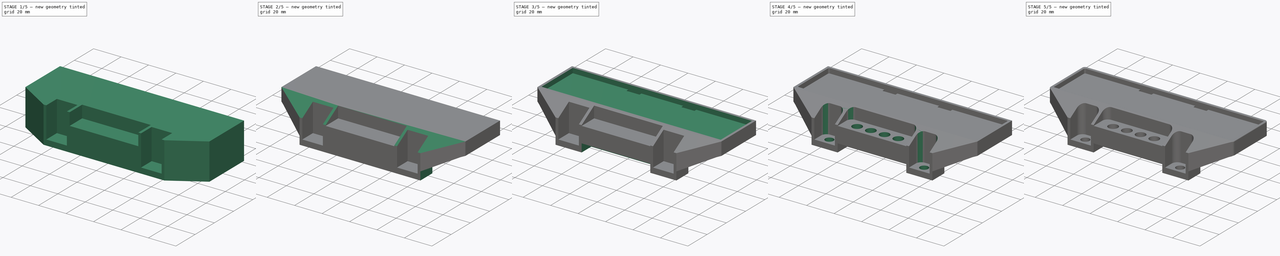
[diagram: build sequence overview — one tinted view per stage of 5, left to right]
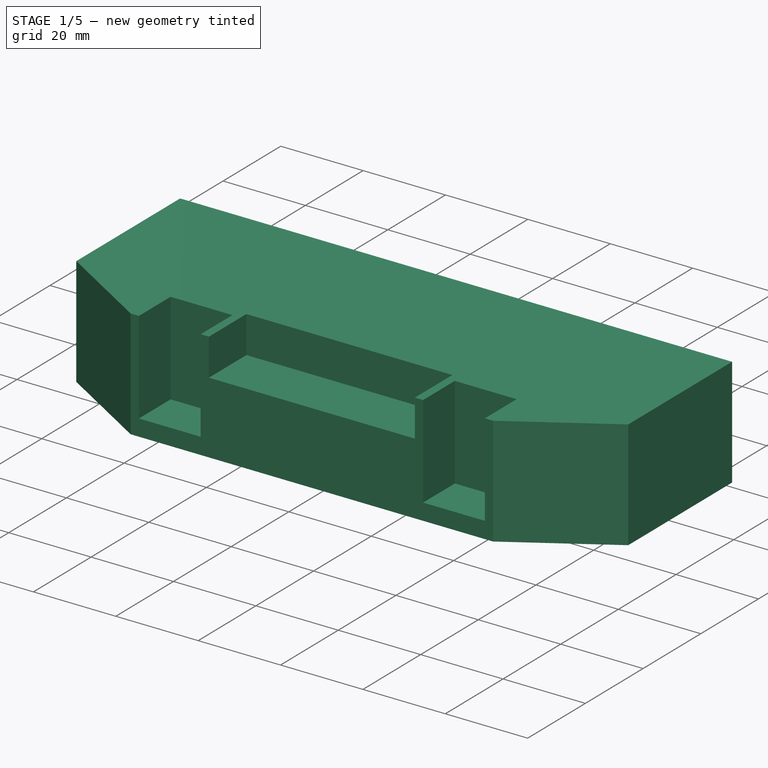
[diagram: stage 1 of 5 — iso view after this stage's code; geometry added in this stage tinted green]
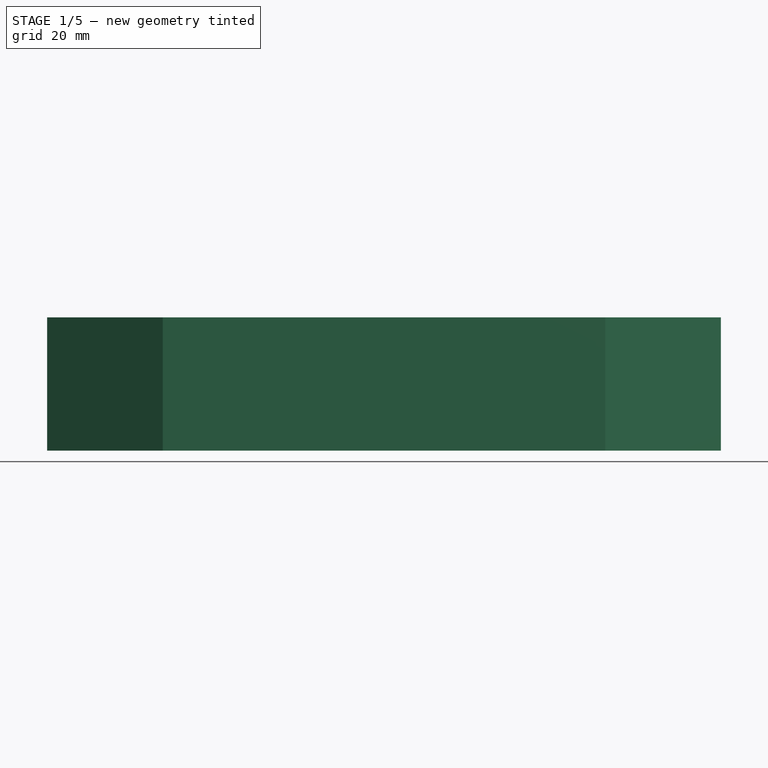
[diagram: stage 1 of 5 — front view after this stage's code; geometry added in this stage tinted green]
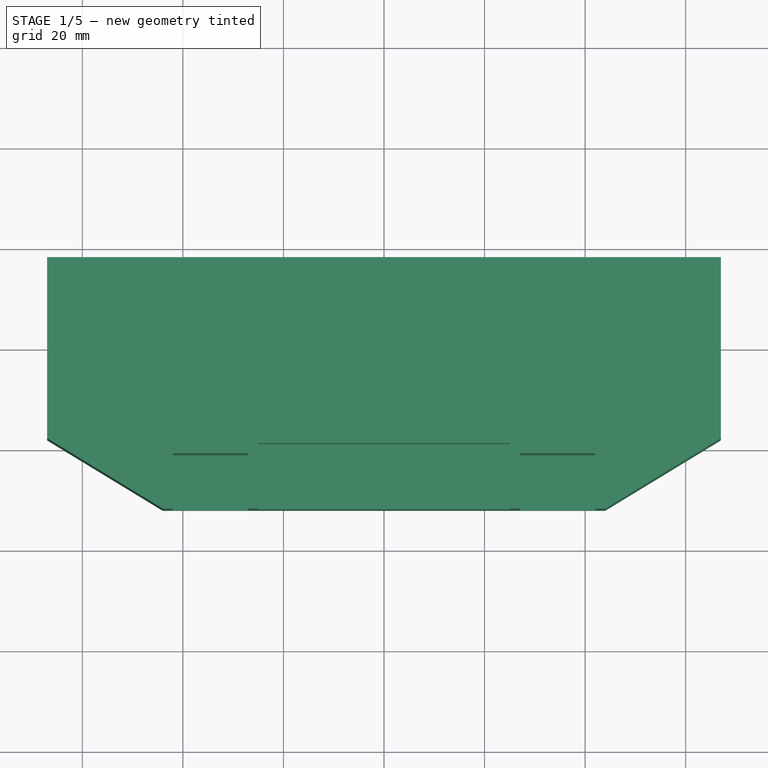
[diagram: stage 1 of 5 — top view after this stage's code; geometry added in this stage tinted green]
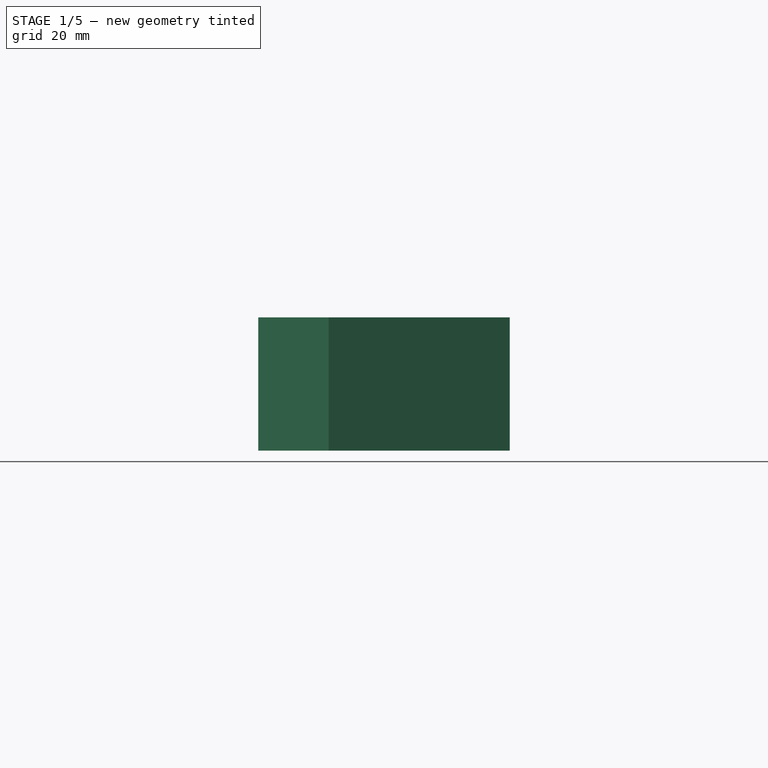
[diagram: stage 1 of 5 — right view after this stage's code; geometry added in this stage tinted green]
FCSTD DOCUMENT  (FreeCAD 0.22R36526 (Git))
Label: FuseBlock
License: All rights reserved
LicenseURL: http://en.wikipedia.org/wiki/All_rights_reserved
objects: Sketcher::SketchObject×10, PartDesign::Pocket×9, PartDesign::Fillet×5, PartDesign::Pad×1, PartDesign::Body×1
note: 41 computed .brp shape members not serialized (recipe doc carries the construction recipe); baked Part::Feature solids carry a one-line shape summary decoded from their .brp

FEATURE [Sketcher::SketchObject] Sketch  label="FullOutline"
  AttachmentSupport = -> [XY_Plane]
  FullyConstrained = true
  MapMode = 5
  sketch-geometry (6):
    g0: LineSegment StartX=-67 StartY=18 StartZ=0 EndX=-67 EndY=-18 EndZ=0
    g1: LineSegment StartX=67 StartY=-18 StartZ=0 EndX=67 EndY=18 EndZ=0
    g2: LineSegment StartX=67 StartY=18 StartZ=0 EndX=-67 EndY=18 EndZ=0
    g3: LineSegment StartX=-44 StartY=-32 StartZ=0 EndX=44 EndY=-32 EndZ=0
    g4: LineSegment StartX=-44 StartY=-32 StartZ=0 EndX=-67 EndY=-18 EndZ=0
    g5: LineSegment StartX=44 StartY=-32 StartZ=0 EndX=67 EndY=-18 EndZ=0
  constraints (16):
    c: Coincident(g1,g2)
    c: Coincident(g2,g0)
    c: Vertical(g0)
    c: Vertical(g1)
    c: Horizontal(g2)
    c: Symmetric(g0,g1,g-1)
    c: DistanceX(g2,g2) = 134
    c: DistanceY(g0,g0) = 36
    c: DistanceX(g3,g3) = 88
    c: Symmetric(g3,g3,g-2)
    c: DistanceY(g3,g0) = 50
    c: Coincident(g4,g3)
    c: Coincident(g4,g0)
    c: Coincident(g5,g3)
    c: Coincident(g5,g1)
    c: Equal(g0,g1)
FEATURE [PartDesign::Pad] Pad  label="EntireOutline"
  Direction = (0,0,1)
  Length = 26.5
  Length2 = 10
  Profile = -> Sketch
  ReferenceAxis = -> Sketch [N_Axis]
  Suppressed = false
  Type = 0
FEATURE [Sketcher::SketchObject] Sketch001  label="MountPocket"
  AttachmentSupport = -> [Pad]
  ExternalGeometry = -> [Pad]
  FullyConstrained = true
  MapMode = 5
  Placement = pos=(0,0,26.5) rot=(0,0,1;0rad)
  sketch-geometry (8):
    g0: LineSegment StartX=-42 StartY=-32 StartZ=0 EndX=-27 EndY=-32 EndZ=0
    g1: LineSegment StartX=-27 StartY=-32 StartZ=0 EndX=-27 EndY=-21 EndZ=0
    g2: LineSegment StartX=-27 StartY=-21 StartZ=0 EndX=-42 EndY=-21 EndZ=0
    g3: LineSegment StartX=-42 StartY=-21 StartZ=0 EndX=-42 EndY=-32 EndZ=0
    g4: LineSegment StartX=42 StartY=-32 StartZ=0 EndX=42 EndY=-21 EndZ=0
    g5: LineSegment StartX=42 StartY=-21 StartZ=0 EndX=27 EndY=-21 EndZ=0
    g6: LineSegment StartX=27 StartY=-21 StartZ=0 EndX=27 EndY=-32 EndZ=0
    g7: LineSegment StartX=27 StartY=-32 StartZ=0 EndX=42 EndY=-32 EndZ=0
  constraints (24):
    c: Coincident(g0,g1)
    c: Coincident(g1,g2)
    c: Coincident(g2,g3)
    c: Coincident(g3,g0)
    c: Horizontal(g0)
    c: Horizontal(g2)
    c: Vertical(g1)
    c: Vertical(g3)
    c: PointOnObject(g0,g-3)
    c: DistanceX(g-3,g0) = 2
    c: DistanceX(g0,g0) = 15
    c: DistanceY(g0,g2) = 11
    c: Coincident(g4,g5)
    c: Coincident(g5,g6)
    c: Coincident(g6,g7)
    c: Coincident(g7,g4)
    c: Vertical(g4)
    c: Vertical(g6)
    c: Horizontal(g5)
    c: Horizontal(g7)
    c: PointOnObject(g4,g-3)
    c: DistanceX(g4,g-3) = 2
    c: DistanceX(g6,g4) = 15
    c: DistanceY(g4,g4) = 11
FEATURE [PartDesign::Pocket] Pocket  label="MountPointPocket"
  BaseFeature = -> Pad
  Direction = (0,0,-1)
  Length = 22.5
  Length2 = 5
  Profile = -> Sketch001
  ReferenceAxis = -> Sketch001 [N_Axis]
  Suppressed = false
  Type = 0
FEATURE [Sketcher::SketchObject] Sketch002  label="BottomCenterCutout"
  AttachmentSupport = -> [Pocket]
  ExternalGeometry = -> [Pocket]
  FullyConstrained = true
  MapMode = 5
  Placement = pos=(0,0,26.5) rot=(0,0,1;0rad)
  sketch-geometry (4):
    g0: LineSegment StartX=-25 StartY=-32 StartZ=0 EndX=25 EndY=-32 EndZ=0
    g1: LineSegment StartX=25 StartY=-32 StartZ=0 EndX=25 EndY=-19 EndZ=0
    g2: LineSegment StartX=25 StartY=-19 StartZ=0 EndX=-25 EndY=-19 EndZ=0
    g3: LineSegment StartX=-25 StartY=-19 StartZ=0 EndX=-25 EndY=-32 EndZ=0
  constraints (12):
    c: Coincident(g0,g1)
    c: Coincident(g1,g2)
    c: Coincident(g2,g3)
    c: Coincident(g3,g0)
    c: Horizontal(g0)
    c: Horizontal(g2)
    c: Vertical(g1)
    c: Vertical(g3)
    c: PointOnObject(g0,g-3)
    c: DistanceX(g0,g0) = 50
    c: DistanceX(g0,g-1) = 25
    c: DistanceY(g0,g2) = 13
FEATURE [PartDesign::Pocket] Pocket001  label="BottomCenterPocket"
  BaseFeature = -> Pocket
  Direction = (0,0,-1)
  Length = 9
  Length2 = 5
  Profile = -> Sketch002
  ReferenceAxis = -> Sketch002 [N_Axis]
  Suppressed = false
  Type = 0
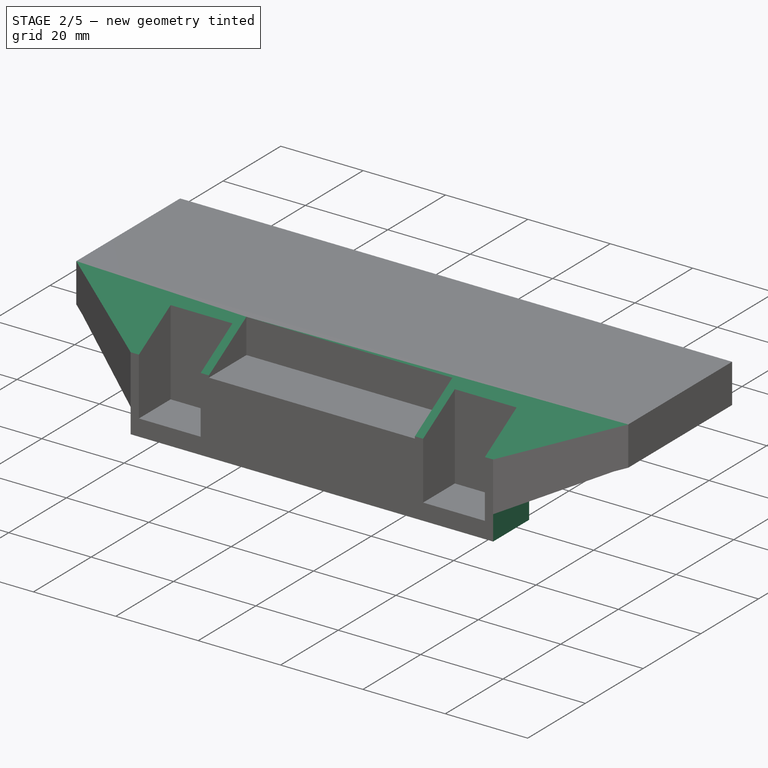
[diagram: stage 2 of 5 — iso view after this stage's code; geometry added in this stage tinted green]
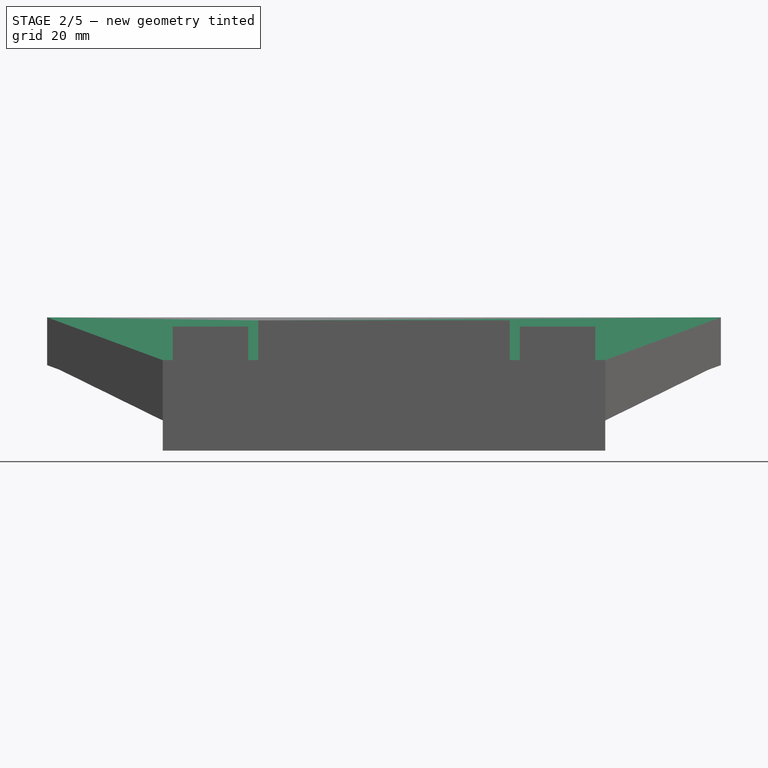
[diagram: stage 2 of 5 — front view after this stage's code; geometry added in this stage tinted green]
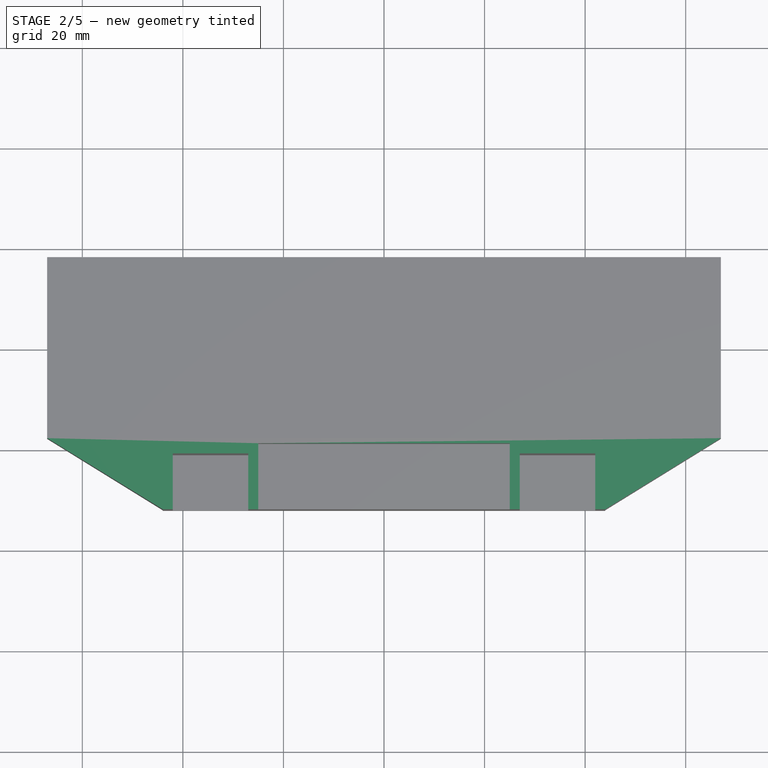
[diagram: stage 2 of 5 — top view after this stage's code; geometry added in this stage tinted green]
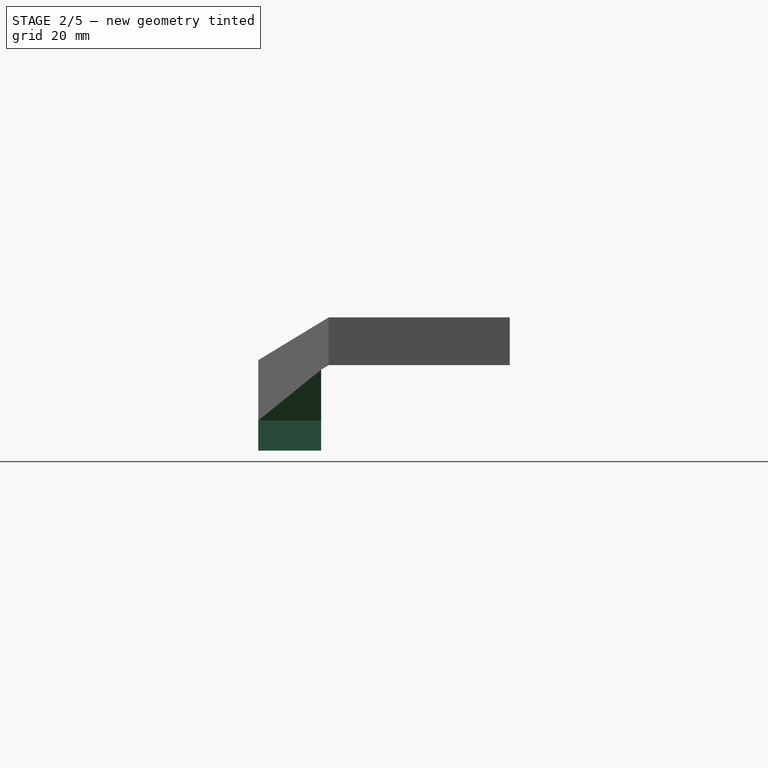
[diagram: stage 2 of 5 — right view after this stage's code; geometry added in this stage tinted green]
FEATURE [Sketcher::SketchObject] Sketch003  label="SideAngle"
  AttachmentSupport = -> [Pocket001]
  ExternalGeometry = -> [Pocket001]
  FullyConstrained = true
  MapMode = 5
  Placement = pos=(67,0,0) rot=(0.57735,0.57735,0.57735;2.0944rad)
  sketch-geometry (3):
    g0: LineSegment StartX=-18 StartY=26.5 StartZ=0 EndX=-32 EndY=18 EndZ=0
    g1: LineSegment StartX=-32 StartY=18 StartZ=0 EndX=-32 EndY=26.5 EndZ=0
    g2: LineSegment StartX=-32 StartY=26.5 StartZ=0 EndX=-18 EndY=26.5 EndZ=0
  constraints (7):
    c: Coincident(g0,g-3)
    c: PointOnObject(g0,g-4)
    c: DistanceY(g-4,g0) = 18
    c: Coincident(g1,g0)
    c: Coincident(g1,g-4)
    c: Coincident(g2,g1)
    c: Coincident(g2,g0)
FEATURE [PartDesign::Pocket] Pocket002  label="SideAnglePocket"
  BaseFeature = -> Pocket001
  Direction = (-1,0,0)
  Length = 5
  Length2 = 5
  Profile = -> Sketch003
  ReferenceAxis = -> Sketch003 [N_Axis]
  Suppressed = false
  Type = 1
FEATURE [Sketcher::SketchObject] Sketch004  label="FirstUndersideRemoval"
  AttachmentSupport = -> [Pocket002]
  ExternalGeometry = -> [Pocket002]
  FullyConstrained = true
  MapMode = 5
  Placement = pos=(67,0,0) rot=(0.57735,0.57735,0.57735;2.0944rad)
  sketch-geometry (5):
    g0: LineSegment StartX=18 StartY=17 StartZ=0 EndX=-18 EndY=17 EndZ=0
    g1: LineSegment StartX=-19.5 StartY=0 StartZ=0 EndX=18 EndY=0 EndZ=0
    g2: LineSegment StartX=18 StartY=0 StartZ=0 EndX=18 EndY=17 EndZ=0
    g3: LineSegment StartX=-19.5 StartY=0 StartZ=0 EndX=-19.5 EndY=16.0893 EndZ=0
    g4: LineSegment StartX=-19.5 StartY=16.0893 StartZ=0 EndX=-18 EndY=17 EndZ=0
  constraints (14):
    c: PointOnObject(g0,g-6)
    c: PointOnObject(g0,g-5)
    c: Horizontal(g0)
    c: PointOnObject(g1,g-1)
    c: Coincident(g1,g-6)
    c: Coincident(g2,g1)
    c: Coincident(g2,g0)
    c: Coincident(g3,g1)
    c: Vertical(g3)
    c: Coincident(g4,g3)
    c: Coincident(g4,g0)
    c: DistanceY(g0,g-6) = 9.5
    c: DistanceX(g-4,g1) = 12.5
    c: Parallel(g-7,g4)
FEATURE [PartDesign::Pocket] Pocket003  label="PrimaryUndersidePocket"
  BaseFeature = -> Pocket002
  Direction = (-1,0,0)
  Length = 5
  Length2 = 5
  Profile = -> Sketch004
  ReferenceAxis = -> Sketch004 [N_Axis]
  Suppressed = false
  Type = 1
FEATURE [Sketcher::SketchObject] Sketch005  label="SecondUndersideRemoval"
  AttachmentSupport = -> [Pocket003]
  ExternalGeometry = -> [Pocket003]
  FullyConstrained = true
  MapMode = 5
  Placement = pos=(0,-32,0) rot=(1,0,0;1.5708rad)
  sketch-geometry (8):
    g0: LineSegment StartX=-44 StartY=0 StartZ=0 EndX=-44 EndY=6 EndZ=0
    g1: LineSegment StartX=44 StartY=0 StartZ=0 EndX=44 EndY=6 EndZ=0
    g2: LineSegment StartX=44 StartY=6 StartZ=0 EndX=64.5357 EndY=16.0893 EndZ=0
    g3: LineSegment StartX=64.5357 StartY=16.0893 StartZ=0 EndX=64.5357 EndY=3.6e-15 EndZ=0
    g4: LineSegment StartX=44 StartY=0 StartZ=0 EndX=64.5357 EndY=3.6e-15 EndZ=0
    g5: LineSegment StartX=-44 StartY=6 StartZ=0 EndX=-64.5357 EndY=16.0893 EndZ=0
    g6: LineSegment StartX=-64.5357 StartY=16.0893 StartZ=0 EndX=-64.5357 EndY=0 EndZ=0
    g7: LineSegment StartX=-64.5357 StartY=0 StartZ=0 EndX=-44 EndY=0 EndZ=0
  constraints (18):
    c: Coincident(g0,g-3)
    c: PointOnObject(g0,g-3)
    c: DistanceY(g0,g0) = 6
    c: Coincident(g1,g-4)
    c: PointOnObject(g1,g-4)
    c: DistanceY(g1,g1) = 6
    c: Coincident(g2,g1)
    c: Coincident(g2,g-9)
    c: Coincident(g3,g2)
    c: Coincident(g3,g-9)
    c: Coincident(g4,g1)
    c: Coincident(g4,g3)
    c: Coincident(g5,g0)
    c: Coincident(g5,g-8)
    c: Coincident(g6,g5)
    c: Coincident(g6,g-8)
    c: Coincident(g7,g6)
    c: Coincident(g7,g0)
FEATURE [PartDesign::Pocket] Pocket004  label="SecondaryUndersidePocket"
  BaseFeature = -> Pocket003
  Direction = (0,1,-2e-16)
  Length = 5
  Length2 = 5
  Profile = -> Sketch005
  ReferenceAxis = -> Sketch005 [N_Axis]
  Suppressed = false
  Type = 1
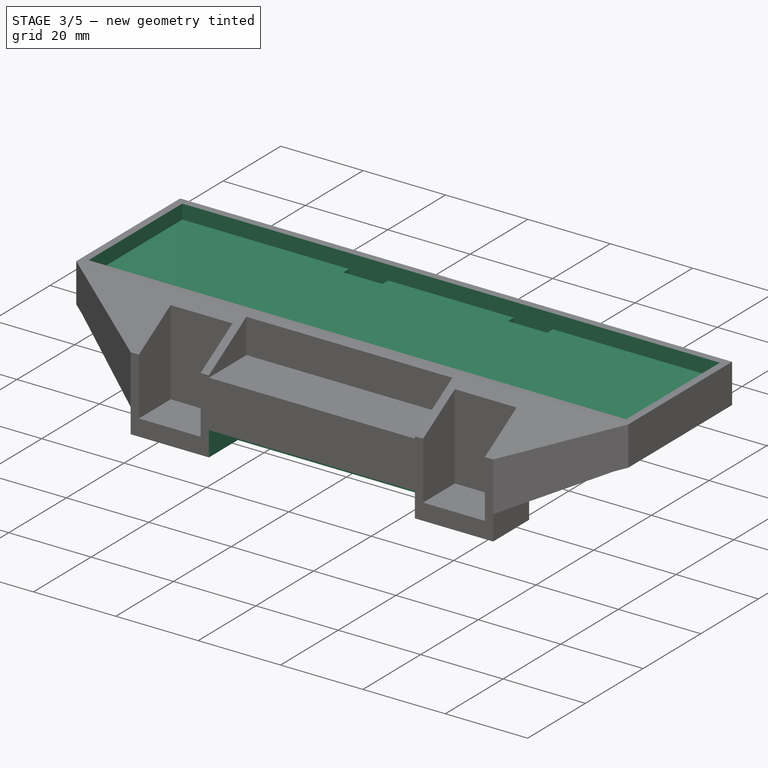
[diagram: stage 3 of 5 — iso view after this stage's code; geometry added in this stage tinted green]
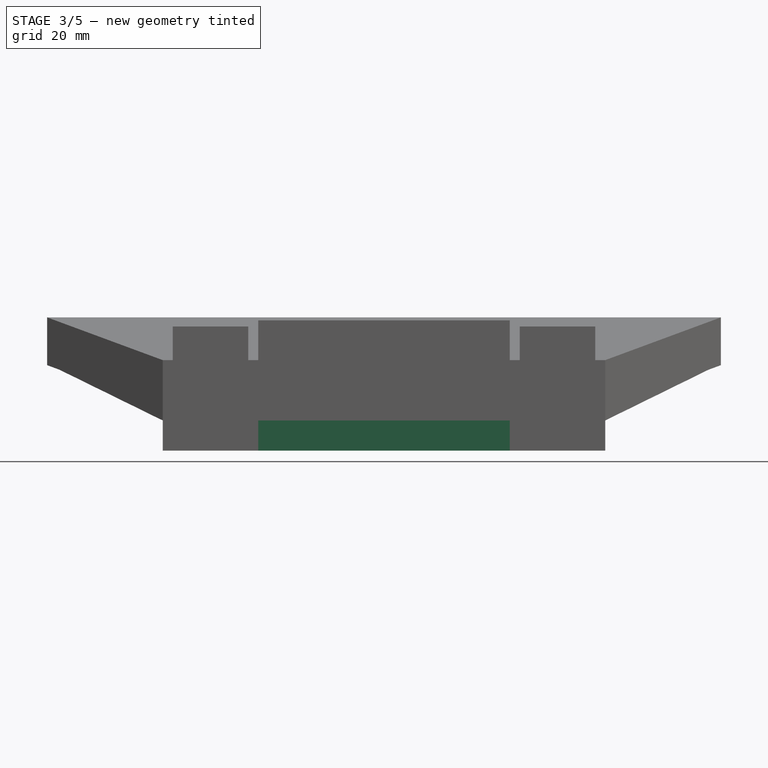
[diagram: stage 3 of 5 — front view after this stage's code; geometry added in this stage tinted green]
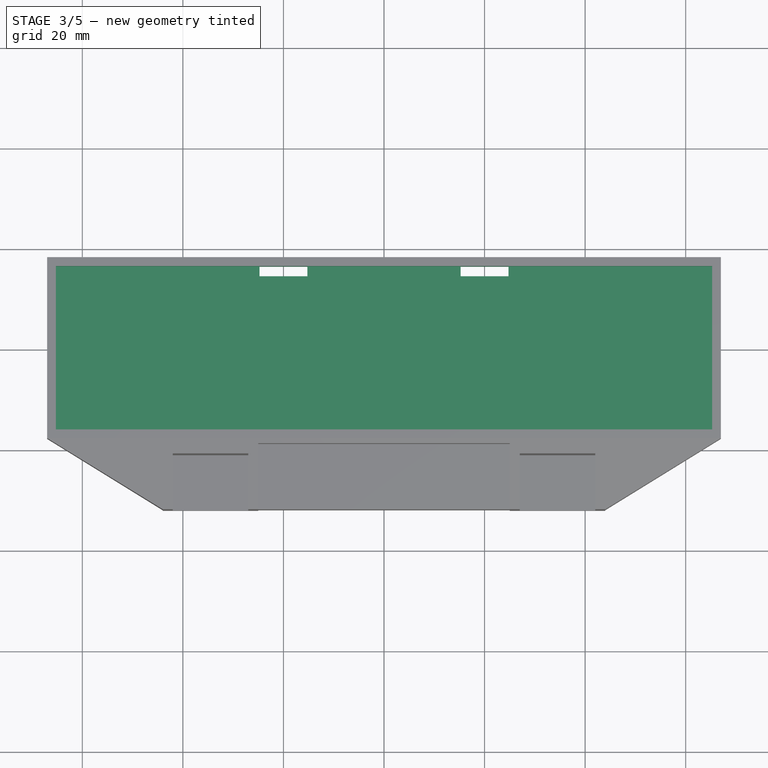
[diagram: stage 3 of 5 — top view after this stage's code; geometry added in this stage tinted green]
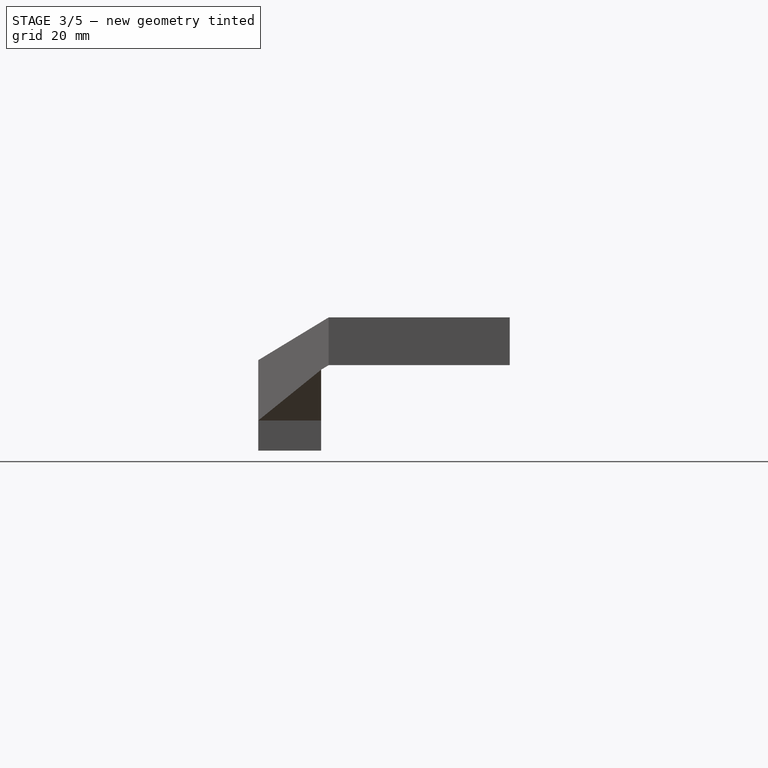
[diagram: stage 3 of 5 — right view after this stage's code; geometry added in this stage tinted green]
FEATURE [Sketcher::SketchObject] Sketch006  label="TopCountersink"
  AttachmentSupport = -> [Pocket004]
  FullyConstrained = true
  MapMode = 5
  Placement = pos=(0,0,26.5) rot=(0,0,1;0rad)
  sketch-geometry (4):
    g0: LineSegment StartX=-65.25 StartY=16.25 StartZ=0 EndX=-65.25 EndY=-16.25 EndZ=0
    g1: LineSegment StartX=-65.25 StartY=-16.25 StartZ=0 EndX=65.25 EndY=-16.25 EndZ=0
    g2: LineSegment StartX=65.25 StartY=-16.25 StartZ=0 EndX=65.25 EndY=16.25 EndZ=0
    g3: LineSegment StartX=65.25 StartY=16.25 StartZ=0 EndX=-65.25 EndY=16.25 EndZ=0
  constraints (11):
    c: Coincident(g0,g1)
    c: Coincident(g1,g2)
    c: Coincident(g2,g3)
    c: Coincident(g3,g0)
    c: Vertical(g0)
    c: Vertical(g2)
    c: Horizontal(g1)
    c: Horizontal(g3)
    c: Symmetric(g0,g1,g-1)
    c: DistanceY(g0,g0) = 32.5
    c: DistanceX(g0,g2) = 130.5
FEATURE [PartDesign::Pocket] Pocket005  label="TopPocket"
  BaseFeature = -> Pocket004
  Direction = (0,0,-1)
  Length = 3.5
  Length2 = 5
  Profile = -> Sketch006
  ReferenceAxis = -> Sketch006 [N_Axis]
  Suppressed = false
  Type = 0
FEATURE [Sketcher::SketchObject] Sketch007  label="CenterBottomCutout"
  AttachmentSupport = -> [Pocket005]
  FullyConstrained = true
  MapMode = 5
  Placement = pos=(0,-32,0) rot=(1,0,0;1.5708rad)
  sketch-geometry (4):
    g0: LineSegment StartX=-25 StartY=0 StartZ=0 EndX=25 EndY=0 EndZ=0
    g1: LineSegment StartX=25 StartY=0 StartZ=0 EndX=25 EndY=6 EndZ=0
    g2: LineSegment StartX=25 StartY=6 StartZ=0 EndX=-25 EndY=6 EndZ=0
    g3: LineSegment StartX=-25 StartY=6 StartZ=0 EndX=-25 EndY=0 EndZ=0
  constraints (11):
    c: Coincident(g0,g1)
    c: Coincident(g1,g2)
    c: Coincident(g2,g3)
    c: Coincident(g3,g0)
    c: Horizontal(g0)
    c: Horizontal(g2)
    c: Vertical(g1)
    c: Vertical(g3)
    c: Symmetric(g0,g0,g-1)
    c: DistanceX(g0,g0) = 50
    c: DistanceY(g0,g2) = 6
FEATURE [PartDesign::Pocket] Pocket006  label="CenterBottomPocket"
  BaseFeature = -> Pocket005
  Direction = (0,1,-2e-16)
  Length = 10
  Length2 = 5
  Profile = -> Sketch007
  ReferenceAxis = -> Sketch007 [N_Axis]
  Suppressed = false
  Type = 0
FEATURE [Sketcher::SketchObject] Sketch008  label="LidHole"
  AttachmentSupport = -> [Pocket006]
  ExternalGeometry = -> [Pocket006]
  FullyConstrained = true
  MapMode = 5
  Placement = pos=(0,0,23) rot=(0,0,1;0rad)
  sketch-geometry (8):
    g0: LineSegment StartX=-24.75 StartY=16.25 StartZ=0 EndX=-24.75 EndY=14.25 EndZ=0
    g1: LineSegment StartX=-24.75 StartY=14.25 StartZ=0 EndX=-15.25 EndY=14.25 EndZ=0
    g2: LineSegment StartX=-15.25 StartY=14.25 StartZ=0 EndX=-15.25 EndY=16.25 EndZ=0
    g3: LineSegment StartX=-15.25 StartY=16.25 StartZ=0 EndX=-24.75 EndY=16.25 EndZ=0
    g4: LineSegment StartX=15.25 StartY=16.25 StartZ=0 EndX=15.25 EndY=14.25 EndZ=0
    g5: LineSegment StartX=15.25 StartY=14.25 StartZ=0 EndX=24.75 EndY=14.25 EndZ=0
    g6: LineSegment StartX=24.75 StartY=14.25 StartZ=0 EndX=24.75 EndY=16.25 EndZ=0
    g7: LineSegment StartX=24.75 StartY=16.25 StartZ=0 EndX=15.25 EndY=16.25 EndZ=0
  constraints (24):
    c: Coincident(g0,g1)
    c: Coincident(g1,g2)
    c: Coincident(g2,g3)
    c: Coincident(g3,g0)
    c: Vertical(g0)
    c: Vertical(g2)
    c: Horizontal(g1)
    c: Horizontal(g3)
    c: PointOnObject(g0,g-3)
    c: DistanceX(g-3,g0) = 40.5
    c: DistanceX(g0,g1) = 9.5
    c: DistanceY(g0,g0) = 2
    c: Coincident(g4,g5)
    c: Coincident(g5,g6)
    c: Coincident(g6,g7)
    c: Coincident(g7,g4)
    c: Vertical(g4)
    c: Vertical(g6)
    c: Horizontal(g5)
    c: Horizontal(g7)
    c: PointOnObject(g4,g-3)
    c: DistanceY(g5,g6) = 2
    c: DistanceX(g6,g-3) = 40.5
    c: DistanceX(g4,g6) = 9.5
FEATURE [PartDesign::Pocket] Pocket007  label="LidPocket"
  BaseFeature = -> Pocket006
  Direction = (0,0,-1)
  Length = 5
  Length2 = 5
  Profile = -> Sketch008
  ReferenceAxis = -> Sketch008 [N_Axis]
  Suppressed = false
  Type = 1
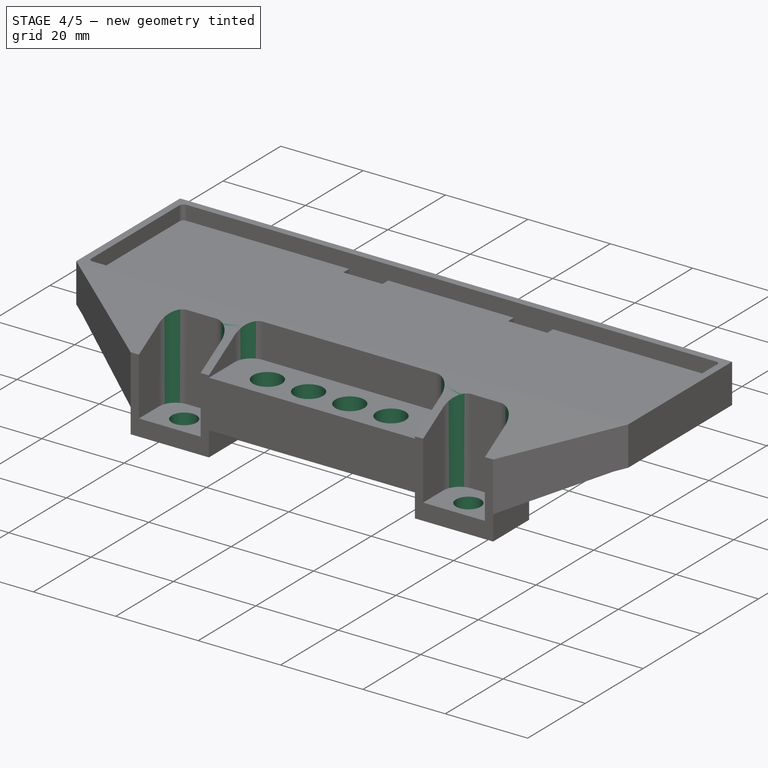
[diagram: stage 4 of 5 — iso view after this stage's code; geometry added in this stage tinted green]
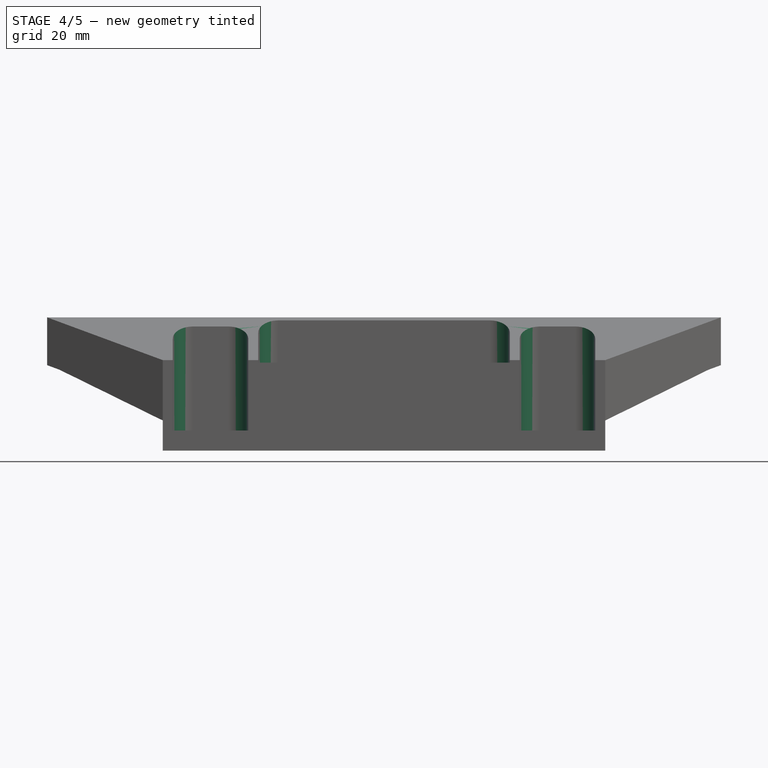
[diagram: stage 4 of 5 — front view after this stage's code; geometry added in this stage tinted green]
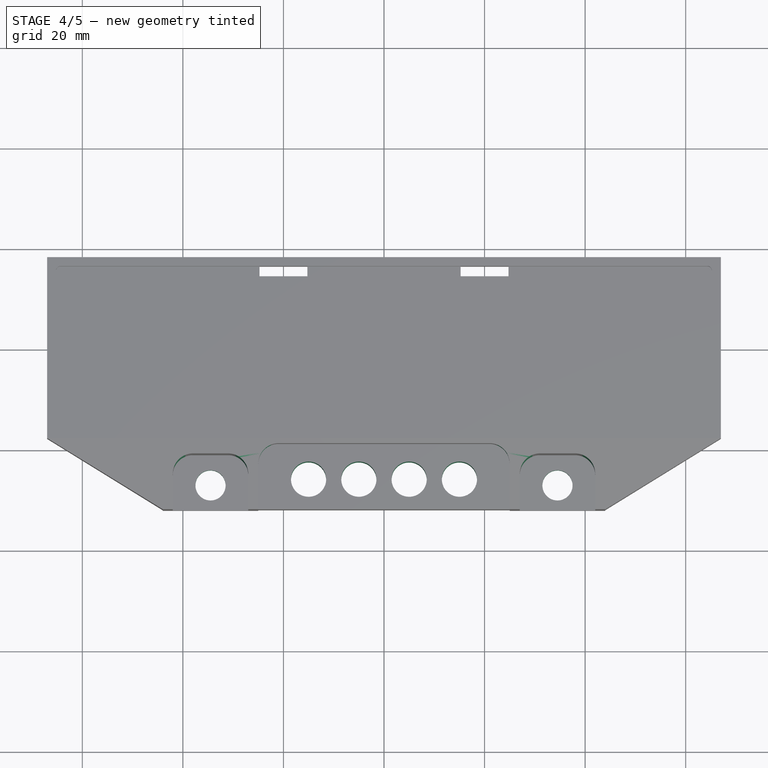
[diagram: stage 4 of 5 — top view after this stage's code; geometry added in this stage tinted green]
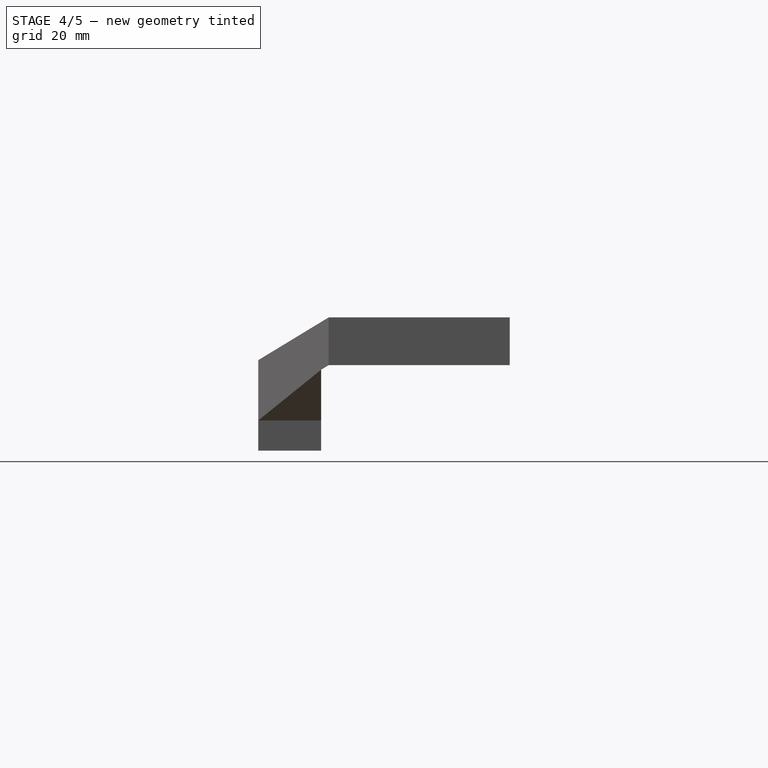
[diagram: stage 4 of 5 — right view after this stage's code; geometry added in this stage tinted green]
FEATURE [Sketcher::SketchObject] Sketch009  label="Holes"
  AttachmentSupport = -> [Pocket007]
  ExternalGeometry = -> [Pocket007]
  FullyConstrained = true
  MapMode = 5
  Placement = pos=(0,0,17.5) rot=(0,0,1;0rad)
  sketch-geometry (6):
    g0: Circle CenterX=-15 CenterY=-26 CenterZ=0 NormalX=0 NormalY=0 NormalZ=1 AngleXU=0 Radius=3.5
    g1: Circle CenterX=-5 CenterY=-26 CenterZ=0 NormalX=0 NormalY=0 NormalZ=1 AngleXU=0 Radius=3.5
    g2: Circle CenterX=15 CenterY=-26 CenterZ=0 NormalX=0 NormalY=0 NormalZ=1 AngleXU=0 Radius=3.5
    g3: Circle CenterX=5 CenterY=-26 CenterZ=0 NormalX=0 NormalY=0 NormalZ=1 AngleXU=0 Radius=3.5
    g4: Circle CenterX=-34.5 CenterY=-27 CenterZ=0 NormalX=0 NormalY=0 NormalZ=1 AngleXU=0 Radius=3
    g5: Circle CenterX=34.5 CenterY=-27 CenterZ=0 NormalX=0 NormalY=0 NormalZ=1 AngleXU=0 Radius=3
  constraints (16):
    c: Diameter(g2) = 7
    c: Equal(g2,g3)
    c: Equal(g3,g1)
    c: Equal(g1,g0)
    c: Horizontal(g2,g3)
    c: Horizontal(g1,g0)
    c: DistanceX(g0,g1) = 10
    c: DistanceX(g3,g2) = 10
    c: DistanceX(g1,g3) = 10
    c: Symmetric(g1,g3,g-2)
    c: DistanceY(g-3,g0) = 6
    c: Diameter(g4) = 6
    c: Equal(g4,g5)
    c: Symmetric(g4,g5,g-2)
    c: DistanceY(g-3,g4) = 5
    c: DistanceX(g4,g5) = 69
FEATURE [PartDesign::Pocket] Pocket008  label="HolesPocket"
  BaseFeature = -> Pocket007
  Direction = (0,0,-1)
  Length = 5
  Length2 = 5
  Profile = -> Sketch009
  ReferenceAxis = -> Sketch009 [N_Axis]
  Suppressed = false
  Type = 1
FEATURE [PartDesign::Fillet] Fillet  label="MountHoleFillet"
  Base = -> Pocket008 [Edge72,Edge77,Edge57,Edge62,Edge71,Edge63]
  BaseFeature = -> Pocket008
  Radius = 4
  SupportTransform = false
  Suppressed = false
  UseAllEdges = false
FEATURE [PartDesign::Fillet] Fillet001  label="TopInternalVerticalFillet"
  Base = -> Fillet [Edge119,Edge121,Edge117,Edge116]
  BaseFeature = -> Fillet
  Radius = 1
  SupportTransform = false
  Suppressed = false
  UseAllEdges = false
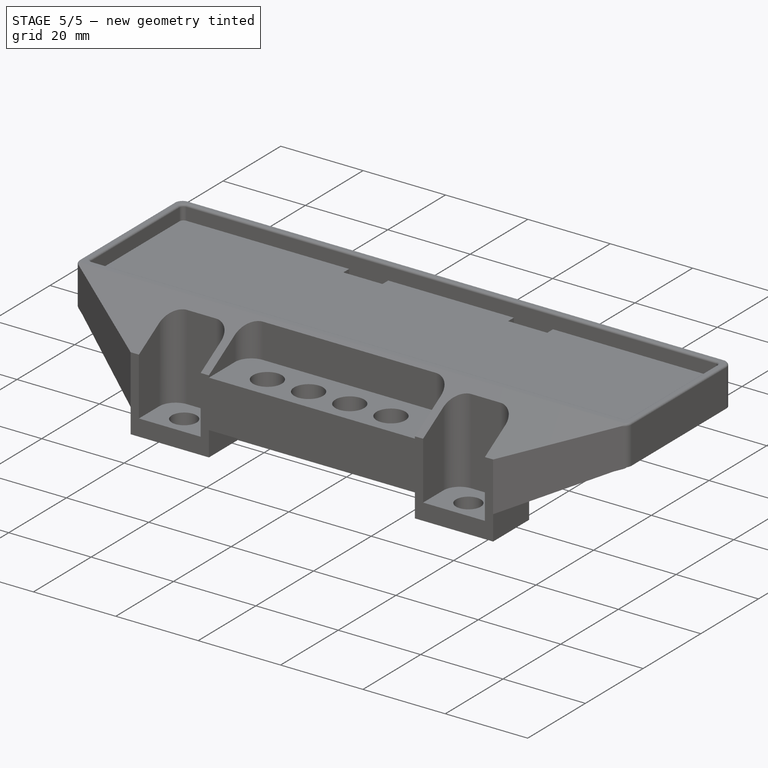
[diagram: stage 5 of 5 — iso view after this stage's code; geometry added in this stage tinted green]
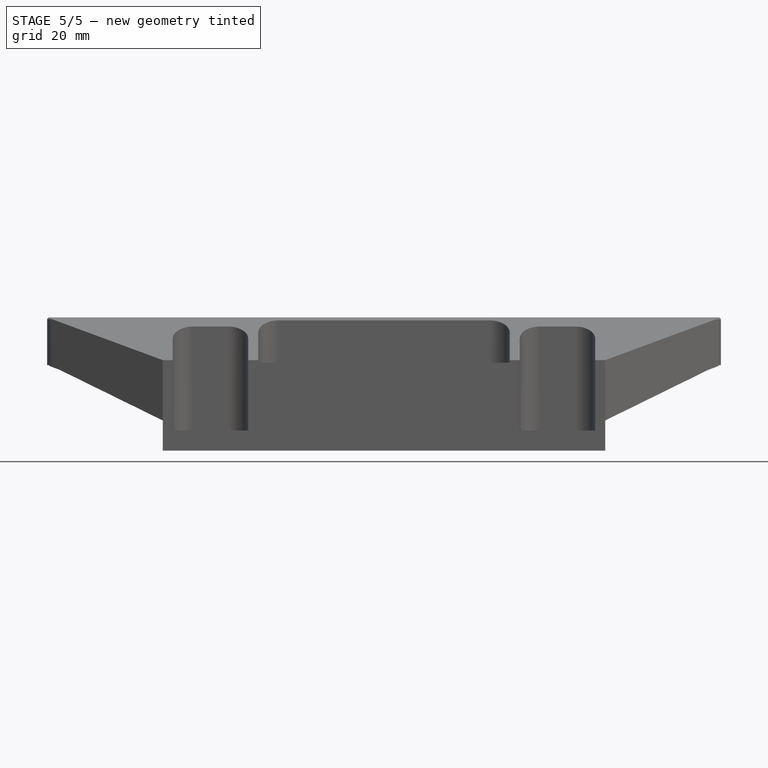
[diagram: stage 5 of 5 — front view after this stage's code; geometry added in this stage tinted green]
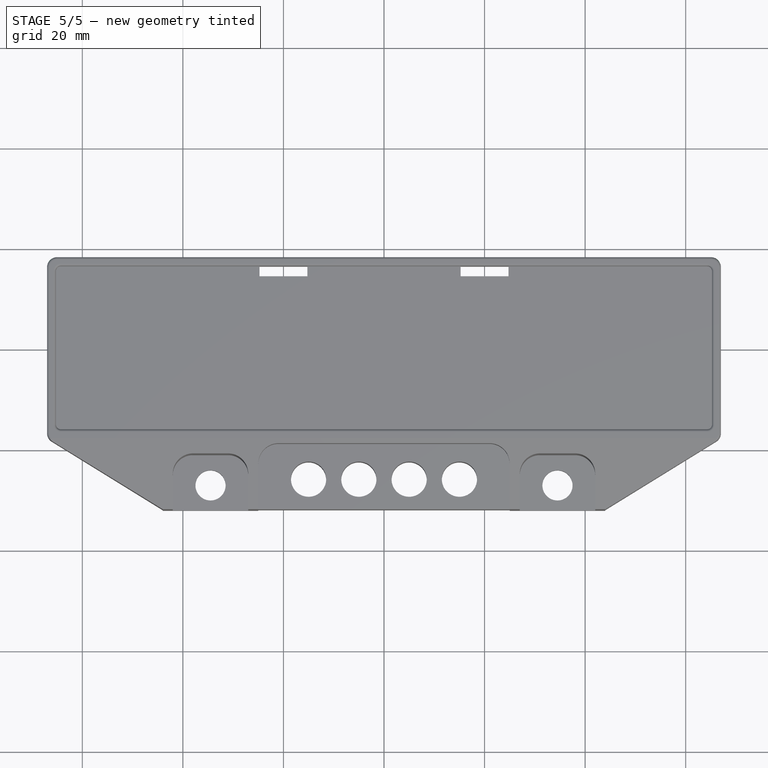
[diagram: stage 5 of 5 — top view after this stage's code; geometry added in this stage tinted green]
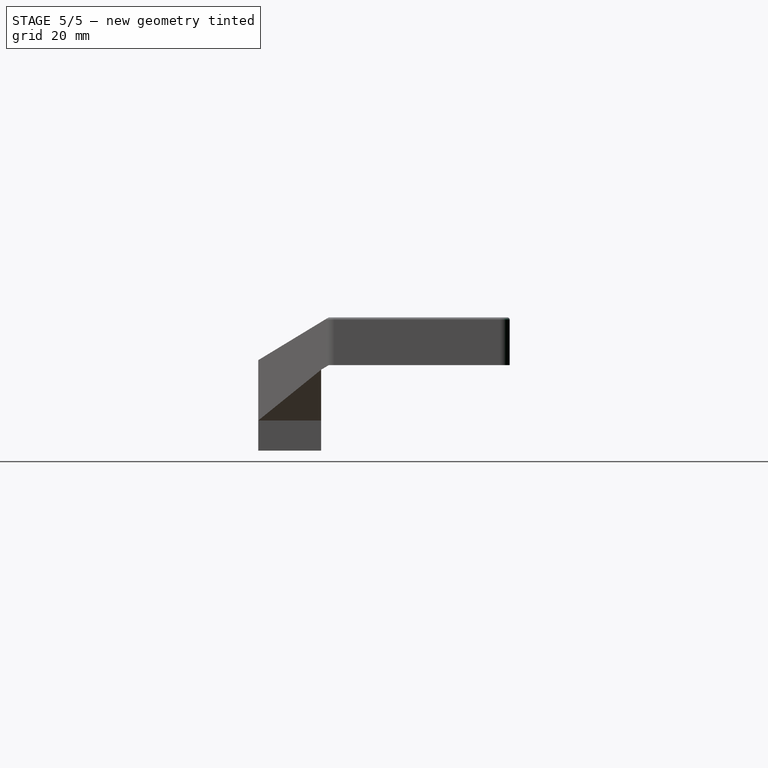
[diagram: stage 5 of 5 — right view after this stage's code; geometry added in this stage tinted green]
FEATURE [PartDesign::Fillet] Fillet002  label="TopInternalHorizontalFillet"
  Base = -> Fillet001 [Edge5]
  BaseFeature = -> Fillet001
  Radius = 0.5
  SupportTransform = false
  Suppressed = false
  UseAllEdges = false
FEATURE [PartDesign::Fillet] Fillet003  label="VerticalOutsideFillet"
  Base = -> Fillet002 [Edge30,Edge31,Edge56,Edge33]
  BaseFeature = -> Fillet002
  Radius = 2
  SupportTransform = false
  Suppressed = false
  UseAllEdges = false
FEATURE [PartDesign::Fillet] Fillet004  label="HorizontalOuterEdgeFillet"
  Base = -> Fillet003 [Edge1,Edge4,Edge8]
  BaseFeature = -> Fillet003
  Radius = 0.5
  SupportTransform = false
  Suppressed = false
  UseAllEdges = false
FEATURE [PartDesign::Body] Body
  Group = -> [Sketch,Pad,Sketch001,Pocket,Sketch002,Pocket001,Sketch003,Pocket002,Sketch004,Pocket003,Sketch005,Pocket004,Sketch006,Pocket005,Sketch007,Pocket006,Sketch008,Pocket007,Sketch009,Pocket008,Fillet,Fillet001,Fillet002,Fillet003,Fillet004]
  Origin = -> Origin
  Tip = -> Fillet004
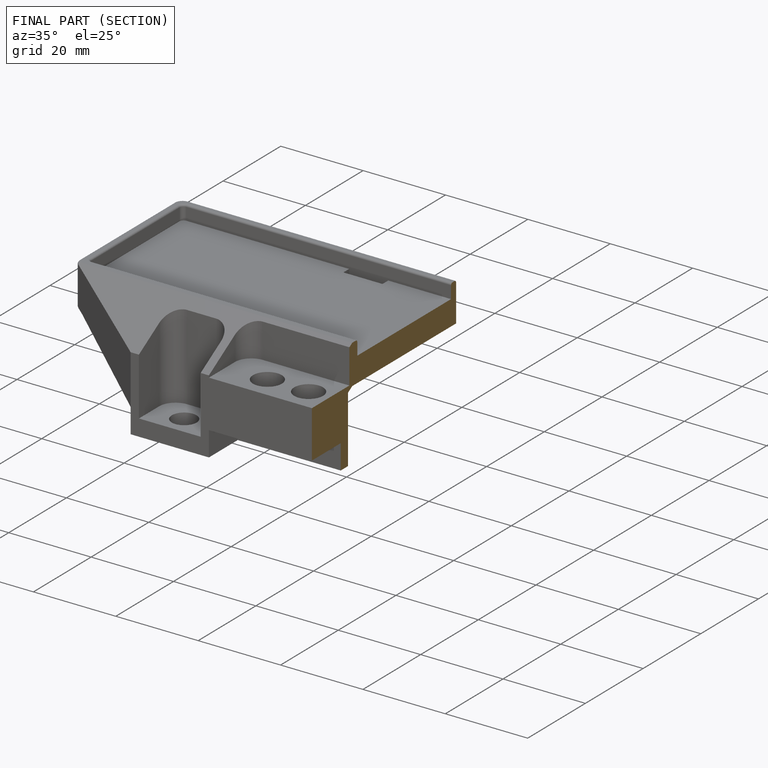
[diagram: finished part — half-section view (interior)]
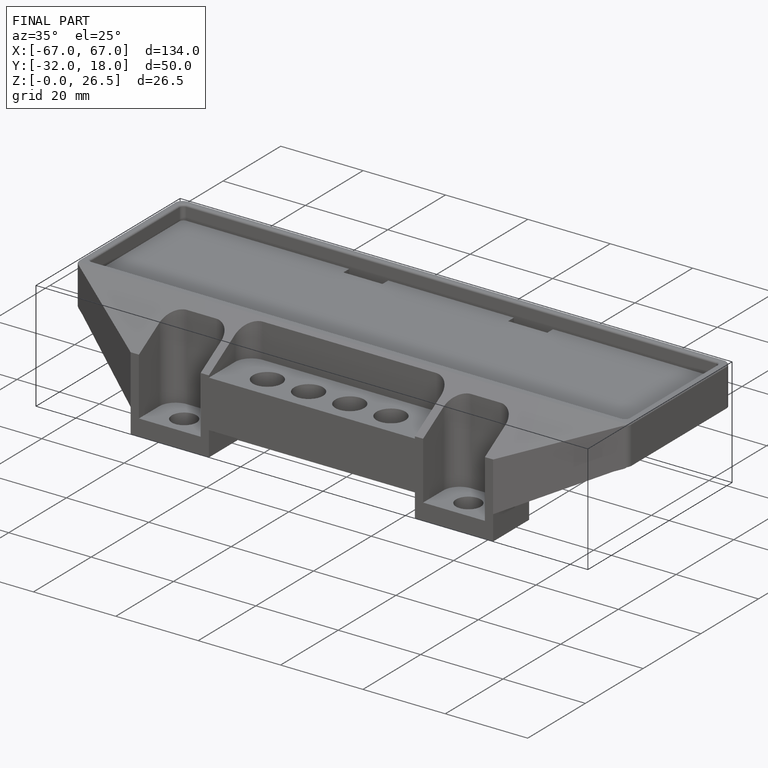
[diagram: finished part — iso view with bounding-box wireframe]
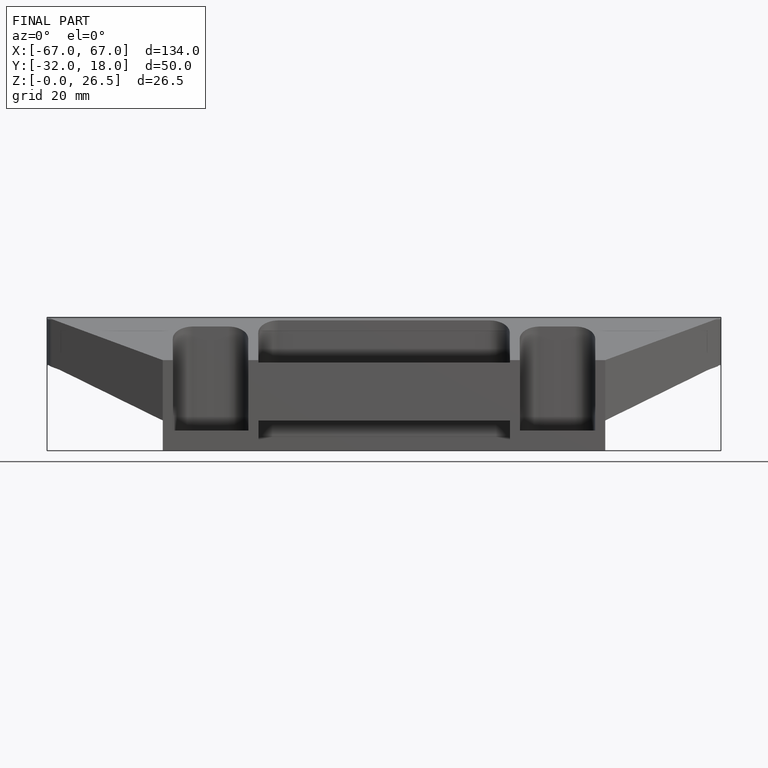
[diagram: finished part — front view with bounding-box wireframe]
